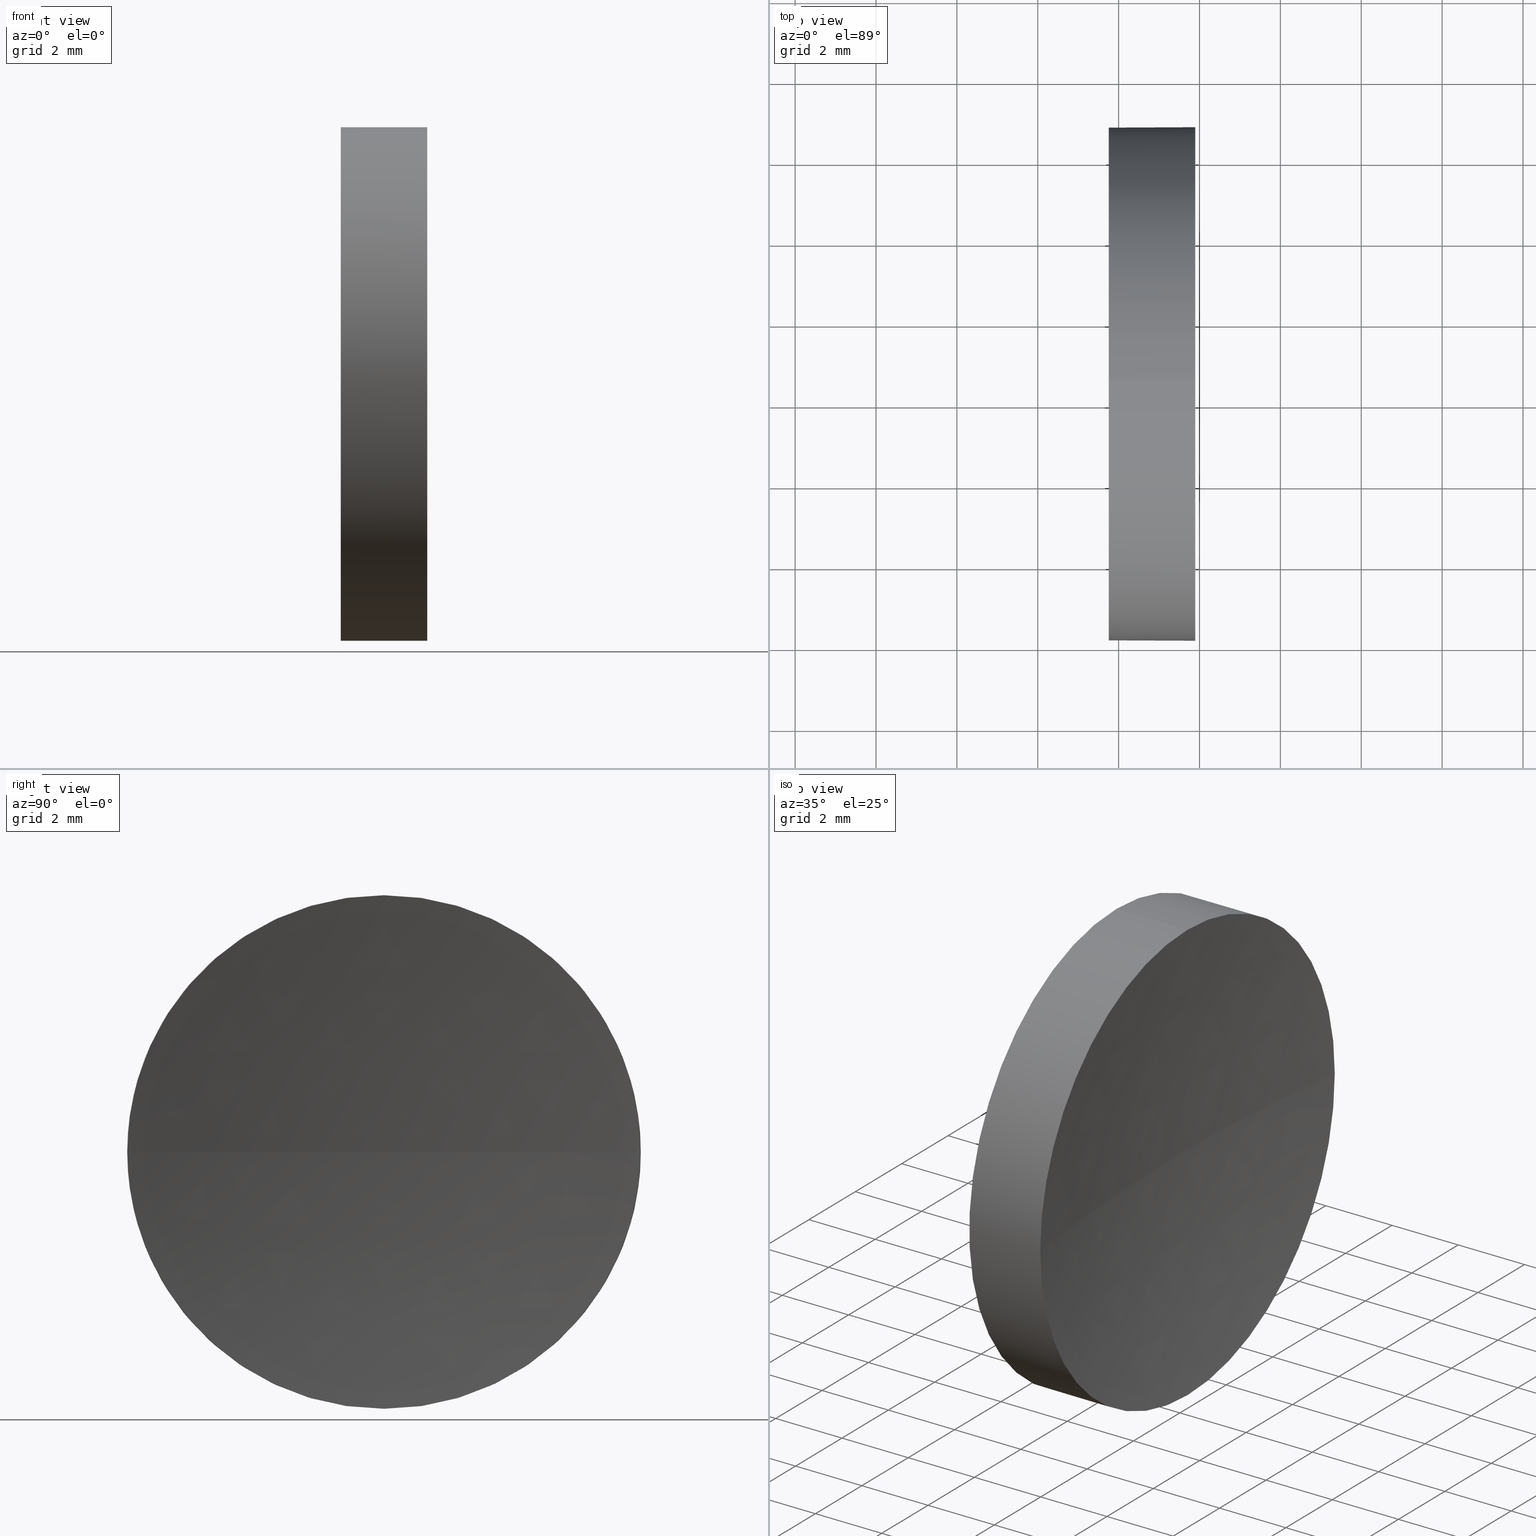
[diagram: canonical four-view strip — front | top / right | iso, engineering-drawing reading convention]
A machine part, canonical four-view strip (front | top / right | iso — engineering-drawing reading convention). The complete STEP part file that produces these views, byte-faithful:
ISO-10303-21;
HEADER;
FILE_DESCRIPTION (( 'STEP AP214' ),
    '1' );
FILE_NAME ('120262.STEP',
    '2019-06-25T02:53:22',
    ( '' ),
    ( '' ),
    'SwSTEP 2.0',
    'SolidWorks 2016',
    '' );
FILE_SCHEMA (( 'AUTOMOTIVE_DESIGN' ));
ENDSEC;

DATA;
#1 = EDGE_CURVE ( 'NONE', #107, #69, #175, .T. ) ;
#2 = DIRECTION ( 'NONE',  ( 0.0000000000000000000, 0.0000000000000000000, 1.000000000000000000 ) ) ;
#3 = UNCERTAINTY_MEASURE_WITH_UNIT (LENGTH_MEASURE( 1.000000000000000100E-005 ), #82, 'distance_accuracy_value', 'NONE');
#4 = EDGE_LOOP ( 'NONE', ( #35, #136, #139, #167, #120 ) ) ;
#5 = STYLED_ITEM ( 'NONE', ( #174 ), #67 ) ;
#6 = AXIS2_PLACEMENT_3D ( 'NONE', #84, #145, #81 ) ;
#7 =( NAMED_UNIT ( * ) PLANE_ANGLE_UNIT ( ) SI_UNIT ( $, .RADIAN. ) );
#8 = PRODUCT_DEFINITION ( 'δ֪', '', #137, #58 ) ;
#9 = CARTESIAN_POINT ( 'NONE',  ( 0.0000000000000000000, 0.0000000000000000000, 0.0000000000000000000 ) ) ;
#10 = UNCERTAINTY_MEASURE_WITH_UNIT (LENGTH_MEASURE( 1.000000000000000100E-005 ), #148, 'distance_accuracy_value', 'NONE');
#11 = DIRECTION ( 'NONE',  ( 0.0000000000000000000, 0.0000000000000000000, 1.000000000000000000 ) ) ;
#12 = DIRECTION ( 'NONE',  ( -1.000000000000000000, -0.0000000000000000000, -0.0000000000000000000 ) ) ;
#13 =( NAMED_UNIT ( * ) PLANE_ANGLE_UNIT ( ) SI_UNIT ( $, .RADIAN. ) );
#14 = DIRECTION ( 'NONE',  ( 0.0000000000000000000, 0.0000000000000000000, 1.000000000000000000 ) ) ;
#15 = CARTESIAN_POINT ( 'NONE',  ( 95.30370850148247500, 28.47759563463749900, 0.0000000000000000000 ) ) ;
#16 = DIRECTION ( 'NONE',  ( 0.0000000000000000000, -1.224646799147353200E-016, 1.000000000000000000 ) ) ;
#17 = PRESENTATION_LAYER_ASSIGNMENT (  '', '', ( #5 ) ) ;
#18 = SHAPE_DEFINITION_REPRESENTATION ( #39, #67 ) ;
#19 = EDGE_LOOP ( 'NONE', ( #37, #25, #43, #182 ) ) ;
#20 = CARTESIAN_POINT ( 'NONE',  ( 47.75370850148247100, 28.47759563463748100, 6.350000000000001400 ) ) ;
#21 = VERTEX_POINT ( 'NONE', #157 ) ;
#22 = PRESENTATION_LAYER_ASSIGNMENT (  '', '', ( #103 ) ) ;
#23 = DIRECTION ( 'NONE',  ( -1.000000000000000000, -0.0000000000000000000, -0.0000000000000000000 ) ) ;
#24 = SURFACE_SIDE_STYLE ('',( #34 ) ) ;
#25 = ORIENTED_EDGE ( 'NONE', *, *, #60, .T. ) ;
#26 = MECHANICAL_DESIGN_GEOMETRIC_PRESENTATION_REPRESENTATION (  '', ( #5 ), #38 ) ;
#27 = SURFACE_STYLE_USAGE ( .BOTH. , #24 ) ;
#28 = DIRECTION ( 'NONE',  ( 0.0000000000000000000, 0.0000000000000000000, 1.000000000000000000 ) ) ;
#29 = CIRCLE ( 'NONE', #78, 6.350000000000008500 ) ;
#30 = CIRCLE ( 'NONE', #31, 6.350000000000008500 ) ;
#31 = AXIS2_PLACEMENT_3D ( 'NONE', #101, #123, #184 ) ;
#32 = PRODUCT_RELATED_PRODUCT_CATEGORY ( 'part', '', ( #124 ) ) ;
#33 = CARTESIAN_POINT ( 'NONE',  ( 44.78209190302423800, 28.47759563463748100, 0.0000000000000000000 ) ) ;
#34 = SURFACE_STYLE_FILL_AREA ( #97 ) ;
#35 = ORIENTED_EDGE ( 'NONE', *, *, #176, .T. ) ;
#36 = DIRECTION ( 'NONE',  ( 0.0000000000000000000, -1.000000000000000000, 0.0000000000000000000 ) ) ;
#37 = ORIENTED_EDGE ( 'NONE', *, *, #176, .F. ) ;
#38 =( GEOMETRIC_REPRESENTATION_CONTEXT ( 3 ) GLOBAL_UNCERTAINTY_ASSIGNED_CONTEXT ( ( #49 ) ) GLOBAL_UNIT_ASSIGNED_CONTEXT ( ( #168, #77, #99 ) ) REPRESENTATION_CONTEXT ( 'NONE', 'WORKASPACE' ) );
#39 = PRODUCT_DEFINITION_SHAPE ( 'NONE', 'NONE',  #8 ) ;
#40 = EDGE_CURVE ( 'NONE', #69, #85, #30, .T. ) ;
#41 = CARTESIAN_POINT ( 'NONE',  ( 47.75370850148247100, 28.47759563463748100, -6.350000000000001400 ) ) ;
#42 = FACE_OUTER_BOUND ( 'NONE', #57, .T. ) ;
#43 = ORIENTED_EDGE ( 'NONE', *, *, #109, .F. ) ;
#44 = CARTESIAN_POINT ( 'NONE',  ( 47.75370850148247100, 28.47759563463748100, 0.0000000000000000000 ) ) ;
#45 = SURFACE_SIDE_STYLE ('',( #153 ) ) ;
#46 = DIRECTION ( 'NONE',  ( -1.000000000000000000, -0.0000000000000000000, -0.0000000000000000000 ) ) ;
#47 = LINE ( 'NONE', #169, #181 ) ;
#48 = ORIENTED_EDGE ( 'NONE', *, *, #1, .T. ) ;
#49 = UNCERTAINTY_MEASURE_WITH_UNIT (LENGTH_MEASURE( 1.000000000000000100E-005 ), #168, 'distance_accuracy_value', 'NONE');
#50 = ADVANCED_FACE ( 'NONE', ( #117 ), #116, .T. ) ;
#51 = EDGE_CURVE ( 'NONE', #107, #161, #47, .T. ) ;
#52 = CARTESIAN_POINT ( 'NONE',  ( 95.30370850148247500, 28.47759563463749900, 0.0000000000000000000 ) ) ;
#53 = CIRCLE ( 'NONE', #151, 6.350000000000001400 ) ;
#54 = CIRCLE ( 'NONE', #127, 45.85000000000000900 ) ;
#55 = EDGE_CURVE ( 'NONE', #111, #161, #95, .T. ) ;
#56 = SPHERICAL_SURFACE ( 'NONE', #158, 45.85000000000000900 ) ;
#57 = EDGE_LOOP ( 'NONE', ( #108, #76, #143, #88 ) ) ;
#58 = PRODUCT_DEFINITION_CONTEXT ( 'detailed design', #166, 'design' ) ;
#59 = PRODUCT_CONTEXT ( 'NONE', #130, 'mechanical' ) ;
#60 = EDGE_CURVE ( 'NONE', #21, #179, #135, .T. ) ;
#61 = DIRECTION ( 'NONE',  ( 0.0000000000000000000, 0.0000000000000000000, 1.000000000000000000 ) ) ;
#62 = DIRECTION ( 'NONE',  ( -1.000000000000000000, -0.0000000000000000000, -0.0000000000000000000 ) ) ;
#63 = DIRECTION ( 'NONE',  ( 0.0000000000000000000, -1.000000000000000000, 0.0000000000000000000 ) ) ;
#64 = DIRECTION ( 'NONE',  ( -1.000000000000000000, -0.0000000000000000000, -0.0000000000000000000 ) ) ;
#65 = CARTESIAN_POINT ( 'NONE',  ( 47.75370850148247100, 28.47759563463748100, 0.0000000000000000000 ) ) ;
#66 = ADVANCED_FACE ( 'NONE', ( #186 ), #98, .F. ) ;
#67 = ADVANCED_BREP_SHAPE_REPRESENTATION ( '120262', ( #160, #162 ), #118 ) ;
#68 = MECHANICAL_DESIGN_GEOMETRIC_PRESENTATION_REPRESENTATION (  '', ( #103 ), #131 ) ;
#69 = VERTEX_POINT ( 'NONE', #104 ) ;
#70 = DIRECTION ( 'NONE',  ( 0.0000000000000000000, 0.0000000000000000000, -1.000000000000000000 ) ) ;
#71 = DIRECTION ( 'NONE',  ( 0.0000000000000000000, 0.0000000000000000000, -1.000000000000000000 ) ) ;
#72 = DIRECTION ( 'NONE',  ( 0.0000000000000000000, 0.0000000000000000000, 1.000000000000000000 ) ) ;
#73 = ORIENTED_EDGE ( 'NONE', *, *, #185, .F. ) ;
#74 = AXIS2_PLACEMENT_3D ( 'NONE', #140, #72, #36 ) ;
#75 = CYLINDRICAL_SURFACE ( 'NONE', #90, 6.350000000000005000 ) ;
#76 = ORIENTED_EDGE ( 'NONE', *, *, #164, .F. ) ;
#77 =( NAMED_UNIT ( * ) PLANE_ANGLE_UNIT ( ) SI_UNIT ( $, .RADIAN. ) );
#78 = AXIS2_PLACEMENT_3D ( 'NONE', #156, #23, #79 ) ;
#79 = DIRECTION ( 'NONE',  ( 0.0000000000000000000, 0.0000000000000000000, 1.000000000000000000 ) ) ;
#80 = SURFACE_STYLE_USAGE ( .BOTH. , #45 ) ;
#81 = DIRECTION ( 'NONE',  ( 0.0000000000000000000, 0.0000000000000000000, 1.000000000000000000 ) ) ;
#82 =( LENGTH_UNIT ( ) NAMED_UNIT ( * ) SI_UNIT ( .MILLI., .METRE. ) );
#83 = FILL_AREA_STYLE ('',( #134 ) ) ;
#84 = CARTESIAN_POINT ( 'NONE',  ( 44.78209190302423800, 28.47759563463748100, 0.0000000000000000000 ) ) ;
#85 = VERTEX_POINT ( 'NONE', #152 ) ;
#86 = DIRECTION ( 'NONE',  ( 1.000000000000000000, 0.0000000000000000000, 0.0000000000000000000 ) ) ;
#87 = ADVANCED_FACE ( 'NONE', ( #129 ), #75, .T. ) ;
#88 = ORIENTED_EDGE ( 'NONE', *, *, #109, .T. ) ;
#89 = ADVANCED_FACE ( 'NONE', ( #126 ), #106, .F. ) ;
#90 = AXIS2_PLACEMENT_3D ( 'NONE', #33, #105, #173 ) ;
#91 = DIRECTION ( 'NONE',  ( -1.000000000000000000, 0.0000000000000000000, 0.0000000000000000000 ) ) ;
#92 = PRESENTATION_STYLE_ASSIGNMENT (( #80 ) ) ;
#93 = AXIS2_PLACEMENT_3D ( 'NONE', #15, #16, #138 ) ;
#94 = DIRECTION ( 'NONE',  ( 1.000000000000000000, 0.0000000000000000000, 0.0000000000000000000 ) ) ;
#95 = CIRCLE ( 'NONE', #142, 6.350000000000001400 ) ;
#96 = CARTESIAN_POINT ( 'NONE',  ( 49.89555945310129900, 28.47759563463748100, 0.0000000000000000000 ) ) ;
#97 = FILL_AREA_STYLE ('',( #122 ) ) ;
#98 = PLANE ( 'NONE',  #112 ) ;
#99 =( NAMED_UNIT ( * ) SI_UNIT ( $, .STERADIAN. ) SOLID_ANGLE_UNIT ( ) );
#100 = DIRECTION ( 'NONE',  ( -1.000000000000000000, -0.0000000000000000000, -0.0000000000000000000 ) ) ;
#101 = CARTESIAN_POINT ( 'NONE',  ( 49.89555945310129900, 28.47759563463748100, 0.0000000000000000000 ) ) ;
#102 = ORIENTED_EDGE ( 'NONE', *, *, #55, .T. ) ;
#103 = STYLED_ITEM ( 'NONE', ( #92 ), #160 ) ;
#104 = CARTESIAN_POINT ( 'NONE',  ( 49.89555945310129900, 22.12759563463748700, 0.0000000000000000000 ) ) ;
#105 = DIRECTION ( 'NONE',  ( -1.000000000000000000, -0.0000000000000000000, -0.0000000000000000000 ) ) ;
#106 = SPHERICAL_SURFACE ( 'NONE', #74, 45.85000000000000900 ) ;
#107 = VERTEX_POINT ( 'NONE', #141 ) ;
#108 = ORIENTED_EDGE ( 'NONE', *, *, #60, .F. ) ;
#109 = EDGE_CURVE ( 'NONE', #69, #179, #54, .T. ) ;
#110 = COLOUR_RGB ( '',1.000000000000000000, 1.000000000000000000, 1.000000000000000000 ) ;
#111 = VERTEX_POINT ( 'NONE', #20 ) ;
#112 = AXIS2_PLACEMENT_3D ( 'NONE', #65, #86, #70 ) ;
#113 = ORIENTED_EDGE ( 'NONE', *, *, #185, .T. ) ;
#114 =( NAMED_UNIT ( * ) SI_UNIT ( $, .STERADIAN. ) SOLID_ANGLE_UNIT ( ) );
#115 = APPLICATION_PROTOCOL_DEFINITION ( 'draft international standard', 'automotive_design', 1998, #130 ) ;
#116 = CYLINDRICAL_SURFACE ( 'NONE', #6, 6.350000000000005000 ) ;
#117 = FACE_OUTER_BOUND ( 'NONE', #4, .T. ) ;
#118 =( GEOMETRIC_REPRESENTATION_CONTEXT ( 3 ) GLOBAL_UNCERTAINTY_ASSIGNED_CONTEXT ( ( #3 ) ) GLOBAL_UNIT_ASSIGNED_CONTEXT ( ( #82, #13, #144 ) ) REPRESENTATION_CONTEXT ( 'NONE', 'WORKASPACE' ) );
#119 = VECTOR ( 'NONE', #62, 1000.000000000000000 ) ;
#120 = ORIENTED_EDGE ( 'NONE', *, *, #164, .T. ) ;
#121 = CARTESIAN_POINT ( 'NONE',  ( 49.45370850148247400, 28.47759563463749500, 0.0000000000000000000 ) ) ;
#122 = FILL_AREA_STYLE_COLOUR ( '', #149 ) ;
#123 = DIRECTION ( 'NONE',  ( -1.000000000000000000, -0.0000000000000000000, -0.0000000000000000000 ) ) ;
#124 = PRODUCT ( '120262', '120262', '', ( #59 ) ) ;
#125 = ADVANCED_FACE ( 'NONE', ( #42 ), #56, .F. ) ;
#126 = FACE_OUTER_BOUND ( 'NONE', #19, .T. ) ;
#127 = AXIS2_PLACEMENT_3D ( 'NONE', #52, #71, #91 ) ;
#128 = ORIENTED_EDGE ( 'NONE', *, *, #178, .T. ) ;
#129 = FACE_OUTER_BOUND ( 'NONE', #150, .T. ) ;
#130 = APPLICATION_CONTEXT ( 'automotive_design' ) ;
#131 =( GEOMETRIC_REPRESENTATION_CONTEXT ( 3 ) GLOBAL_UNCERTAINTY_ASSIGNED_CONTEXT ( ( #10 ) ) GLOBAL_UNIT_ASSIGNED_CONTEXT ( ( #148, #7, #114 ) ) REPRESENTATION_CONTEXT ( 'NONE', 'WORKASPACE' ) );
#132 = CARTESIAN_POINT ( 'NONE',  ( 49.89555945310129900, 28.47759563463748100, 0.0000000000000000000 ) ) ;
#133 = CLOSED_SHELL ( 'NONE', ( #50, #89, #125, #87, #66 ) ) ;
#134 = FILL_AREA_STYLE_COLOUR ( '', #110 ) ;
#135 = CIRCLE ( 'NONE', #93, 45.85000000000000900 ) ;
#136 = ORIENTED_EDGE ( 'NONE', *, *, #51, .T. ) ;
#137 = PRODUCT_DEFINITION_FORMATION_WITH_SPECIFIED_SOURCE ( '�κ�', '', #124, .NOT_KNOWN. ) ;
#138 = DIRECTION ( 'NONE',  ( 0.0000000000000000000, -1.000000000000000000, -1.224646799147353200E-016 ) ) ;
#139 = ORIENTED_EDGE ( 'NONE', *, *, #55, .F. ) ;
#140 = CARTESIAN_POINT ( 'NONE',  ( 95.30370850148247500, 28.47759563463749900, 0.0000000000000000000 ) ) ;
#141 = CARTESIAN_POINT ( 'NONE',  ( 49.89555945310129900, 28.47759563463748100, -6.350000000000007600 ) ) ;
#142 = AXIS2_PLACEMENT_3D ( 'NONE', #44, #100, #146 ) ;
#143 = ORIENTED_EDGE ( 'NONE', *, *, #40, .F. ) ;
#144 =( NAMED_UNIT ( * ) SI_UNIT ( $, .STERADIAN. ) SOLID_ANGLE_UNIT ( ) );
#145 = DIRECTION ( 'NONE',  ( -1.000000000000000000, -0.0000000000000000000, -0.0000000000000000000 ) ) ;
#146 = DIRECTION ( 'NONE',  ( 0.0000000000000000000, 0.0000000000000000000, 1.000000000000000000 ) ) ;
#147 = CARTESIAN_POINT ( 'NONE',  ( 44.78209190302423800, 28.47759563463748100, 6.350000000000005000 ) ) ;
#148 =( LENGTH_UNIT ( ) NAMED_UNIT ( * ) SI_UNIT ( .MILLI., .METRE. ) );
#149 = COLOUR_RGB ( '',1.000000000000000000, 1.000000000000000000, 1.000000000000000000 ) ;
#150 = EDGE_LOOP ( 'NONE', ( #165, #48, #155, #128, #73 ) ) ;
#151 = AXIS2_PLACEMENT_3D ( 'NONE', #183, #46, #61 ) ;
#152 = CARTESIAN_POINT ( 'NONE',  ( 49.89555945310129900, 28.47759563463748100, 6.350000000000007600 ) ) ;
#153 = SURFACE_STYLE_FILL_AREA ( #83 ) ;
#154 = EDGE_LOOP ( 'NONE', ( #102, #113 ) ) ;
#155 = ORIENTED_EDGE ( 'NONE', *, *, #40, .T. ) ;
#156 = CARTESIAN_POINT ( 'NONE',  ( 49.89555945310129900, 28.47759563463748100, 0.0000000000000000000 ) ) ;
#157 = CARTESIAN_POINT ( 'NONE',  ( 49.89555945310129900, 34.82759563463749000, 7.776507174585682300E-016 ) ) ;
#158 = AXIS2_PLACEMENT_3D ( 'NONE', #172, #2, #63 ) ;
#159 = LINE ( 'NONE', #147, #119 ) ;
#160 = MANIFOLD_SOLID_BREP ( '��ת1', #133 ) ;
#161 = VERTEX_POINT ( 'NONE', #41 ) ;
#162 = AXIS2_PLACEMENT_3D ( 'NONE', #9, #14, #94 ) ;
#163 = CIRCLE ( 'NONE', #171, 6.350000000000008500 ) ;
#164 = EDGE_CURVE ( 'NONE', #85, #21, #29, .T. ) ;
#165 = ORIENTED_EDGE ( 'NONE', *, *, #51, .F. ) ;
#166 = APPLICATION_CONTEXT ( 'automotive_design' ) ;
#167 = ORIENTED_EDGE ( 'NONE', *, *, #178, .F. ) ;
#168 =( LENGTH_UNIT ( ) NAMED_UNIT ( * ) SI_UNIT ( .MILLI., .METRE. ) );
#169 = CARTESIAN_POINT ( 'NONE',  ( 44.78209190302423800, 28.47759563463748100, -6.350000000000005000 ) ) ;
#170 = DIRECTION ( 'NONE',  ( -1.000000000000000000, -0.0000000000000000000, -0.0000000000000000000 ) ) ;
#171 = AXIS2_PLACEMENT_3D ( 'NONE', #96, #64, #11 ) ;
#172 = CARTESIAN_POINT ( 'NONE',  ( 95.30370850148247500, 28.47759563463749900, 0.0000000000000000000 ) ) ;
#173 = DIRECTION ( 'NONE',  ( 0.0000000000000000000, 0.0000000000000000000, 1.000000000000000000 ) ) ;
#174 = PRESENTATION_STYLE_ASSIGNMENT (( #27 ) ) ;
#175 = CIRCLE ( 'NONE', #177, 6.350000000000008500 ) ;
#176 = EDGE_CURVE ( 'NONE', #21, #107, #163, .T. ) ;
#177 = AXIS2_PLACEMENT_3D ( 'NONE', #132, #170, #28 ) ;
#178 = EDGE_CURVE ( 'NONE', #85, #111, #159, .T. ) ;
#179 = VERTEX_POINT ( 'NONE', #121 ) ;
#180 = APPLICATION_PROTOCOL_DEFINITION ( 'draft international standard', 'automotive_design', 1998, #166 ) ;
#181 = VECTOR ( 'NONE', #12, 1000.000000000000000 ) ;
#182 = ORIENTED_EDGE ( 'NONE', *, *, #1, .F. ) ;
#183 = CARTESIAN_POINT ( 'NONE',  ( 47.75370850148247100, 28.47759563463748100, 0.0000000000000000000 ) ) ;
#184 = DIRECTION ( 'NONE',  ( 0.0000000000000000000, 0.0000000000000000000, 1.000000000000000000 ) ) ;
#185 = EDGE_CURVE ( 'NONE', #161, #111, #53, .T. ) ;
#186 = FACE_OUTER_BOUND ( 'NONE', #154, .T. ) ;
ENDSEC;
END-ISO-10303-21;
